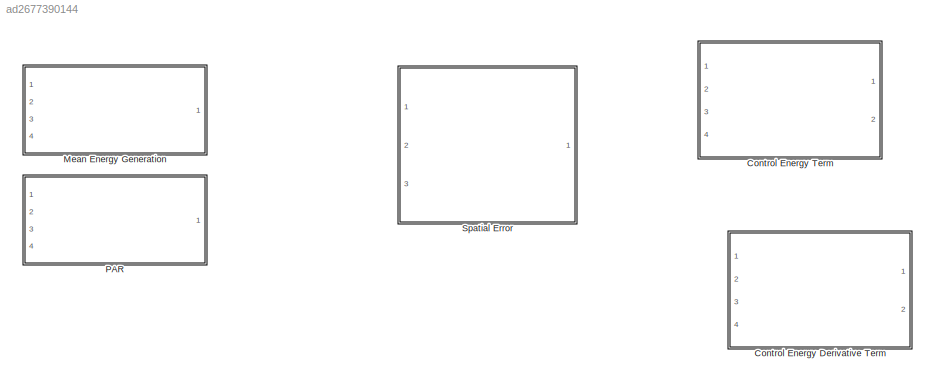
MODEL slx_ad2677390144
KIND library
CONFIG AbsTol = auto
CONFIG EnableMultiTasking = off
CONFIG FixedStep = auto
CONFIG MaxStep = auto
CONFIG MinStep = auto
CONFIG RelTol = 1e-3
CONFIG SampleTimeConstraint = Unconstrained
CONFIG Solver = VariableStepAuto
CONFIG SolverName = VariableStepAuto
CONFIG StartTime = 0.0
CONFIG StopTime = 10.0
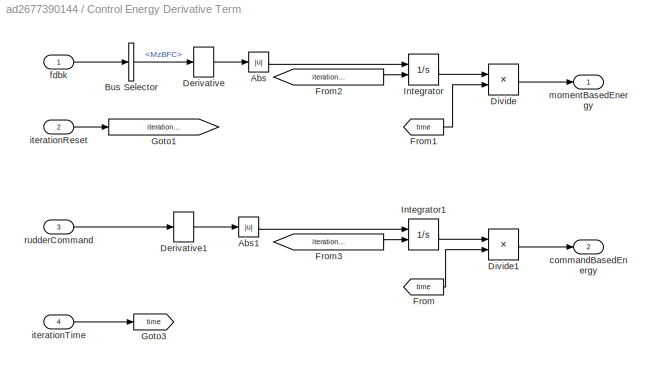
BLOCK [SubSystem] Control Energy Derivative Term
  Ports = [4, 2]
  RequestExecContextInheritance = off
BLOCK [Abs] Control Energy Derivative Term/Abs
  SaturateOnIntegerOverflow = off
BLOCK [Abs] Control Energy Derivative Term/Abs1
  SaturateOnIntegerOverflow = off
BLOCK [BusSelector] Control Energy Derivative Term/Bus Selector
  OutputAsBus = off
  OutputSignals = MzBFC
  Ports = [1, 1]
BLOCK [Derivative] Control Energy Derivative Term/Derivative
BLOCK [Derivative] Control Energy Derivative Term/Derivative1
BLOCK [Product] Control Energy Derivative Term/Divide
  InputSameDT = off
  Inputs = */
  OutDataTypeStr = Inherit: Inherit via internal rule
  Ports = [2, 1]
  RndMeth = Floor
  SaturateOnIntegerOverflow = off
BLOCK [Product] Control Energy Derivative Term/Divide1
  InputSameDT = off
  Inputs = */
  OutDataTypeStr = Inherit: Inherit via internal rule
  Ports = [2, 1]
  RndMeth = Floor
  SaturateOnIntegerOverflow = off
BLOCK [From] Control Energy Derivative Term/From
  GotoTag = time
BLOCK [From] Control Energy Derivative Term/From1
  GotoTag = time
BLOCK [From] Control Energy Derivative Term/From2
  GotoTag = iterationRst
BLOCK [From] Control Energy Derivative Term/From3
  GotoTag = iterationRst
BLOCK [Goto] Control Energy Derivative Term/Goto1
  GotoTag = iterationRst
BLOCK [Goto] Control Energy Derivative Term/Goto3
  GotoTag = time
BLOCK [Integrator] Control Energy Derivative Term/Integrator
  ExternalReset = rising
  Ports = [2, 1]
BLOCK [Integrator] Control Energy Derivative Term/Integrator1
  ExternalReset = rising
  Ports = [2, 1]
BLOCK [Outport] Control Energy Derivative Term/commandBasedEnergy
  IconDisplay = Port number
  Port = 2
BLOCK [Inport] Control Energy Derivative Term/fdbk
  IconDisplay = Port number
BLOCK [Inport] Control Energy Derivative Term/iterationReset
  IconDisplay = Port number
  Port = 2
BLOCK [Inport] Control Energy Derivative Term/iterationTime
  IconDisplay = Port number
  Port = 4
BLOCK [Outport] Control Energy Derivative Term/momentBasedEnergy
  IconDisplay = Port number
BLOCK [Inport] Control Energy Derivative Term/rudderCommand
  IconDisplay = Port number
  Port = 3
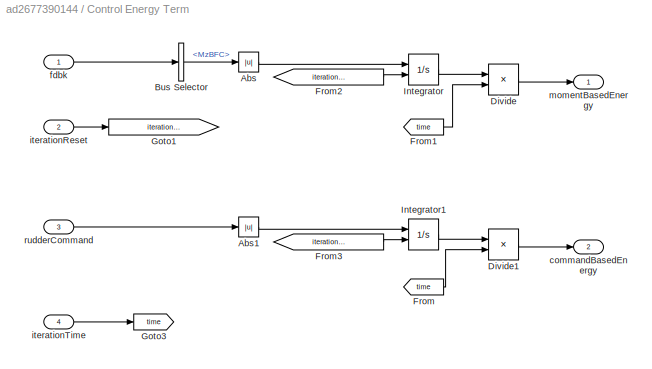
BLOCK [SubSystem] Control Energy Term
  Ports = [4, 2]
  RequestExecContextInheritance = off
BLOCK [Abs] Control Energy Term/Abs
  SaturateOnIntegerOverflow = off
BLOCK [Abs] Control Energy Term/Abs1
  SaturateOnIntegerOverflow = off
BLOCK [BusSelector] Control Energy Term/Bus Selector
  OutputAsBus = off
  OutputSignals = MzBFC
  Ports = [1, 1]
BLOCK [Product] Control Energy Term/Divide
  InputSameDT = off
  Inputs = */
  OutDataTypeStr = Inherit: Inherit via internal rule
  Ports = [2, 1]
  RndMeth = Floor
  SaturateOnIntegerOverflow = off
BLOCK [Product] Control Energy Term/Divide1
  InputSameDT = off
  Inputs = */
  OutDataTypeStr = Inherit: Inherit via internal rule
  Ports = [2, 1]
  RndMeth = Floor
  SaturateOnIntegerOverflow = off
BLOCK [From] Control Energy Term/From
  GotoTag = time
BLOCK [From] Control Energy Term/From1
  GotoTag = time
BLOCK [From] Control Energy Term/From2
  GotoTag = iterationRst
BLOCK [From] Control Energy Term/From3
  GotoTag = iterationRst
BLOCK [Goto] Control Energy Term/Goto1
  GotoTag = iterationRst
BLOCK [Goto] Control Energy Term/Goto3
  GotoTag = time
BLOCK [Integrator] Control Energy Term/Integrator
  ExternalReset = rising
  Ports = [2, 1]
BLOCK [Integrator] Control Energy Term/Integrator1
  ExternalReset = rising
  Ports = [2, 1]
BLOCK [Outport] Control Energy Term/commandBasedEnergy
  IconDisplay = Port number
  Port = 2
BLOCK [Inport] Control Energy Term/fdbk
  IconDisplay = Port number
BLOCK [Inport] Control Energy Term/iterationReset
  IconDisplay = Port number
  Port = 2
BLOCK [Inport] Control Energy Term/iterationTime
  IconDisplay = Port number
  Port = 4
BLOCK [Outport] Control Energy Term/momentBasedEnergy
  IconDisplay = Port number
BLOCK [Inport] Control Energy Term/rudderCommand
  IconDisplay = Port number
  Port = 3
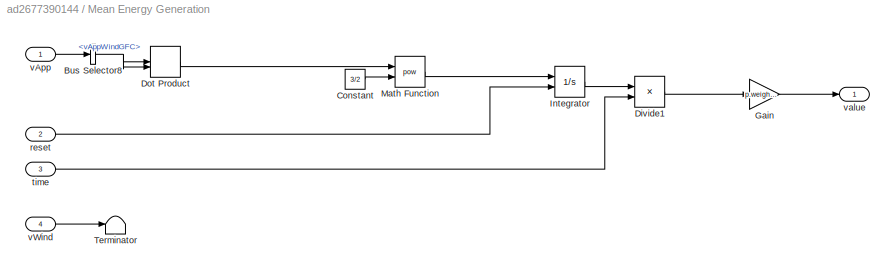
BLOCK [SubSystem] Mean Energy Generation
  Ports = [4, 1]
  RequestExecContextInheritance = off
BLOCK [BusSelector] Mean Energy Generation/Bus Selector8
  OutputAsBus = off
  OutputSignals = vAppWindGFC
  Ports = [1, 1]
BLOCK [Constant] Mean Energy Generation/Constant
  Value = 3/2
BLOCK [Product] Mean Energy Generation/Divide1
  InputSameDT = off
  Inputs = */
  OutDataTypeStr = Inherit: Inherit via internal rule
  Ports = [2, 1]
  RndMeth = Floor
  SaturateOnIntegerOverflow = off
BLOCK [DotProduct] Mean Energy Generation/Dot Product
  OutDataTypeStr = Inherit: Inherit via internal rule
BLOCK [Gain] Mean Energy Generation/Gain
  Gain = p.weightME
  OutDataTypeStr = Inherit: Inherit via internal rule
  ParamDataTypeStr = Inherit: Inherit via internal rule
  SaturateOnIntegerOverflow = off
BLOCK [Integrator] Mean Energy Generation/Integrator
  ExternalReset = rising
  Ports = [2, 1]
BLOCK [Math] Mean Energy Generation/Math Function
  Operator = pow
  Ports = [2, 1]
BLOCK [Terminator] Mean Energy Generation/Terminator
BLOCK [Inport] Mean Energy Generation/reset
  IconDisplay = Port number
  Port = 2
BLOCK [Inport] Mean Energy Generation/time
  IconDisplay = Port number
  Port = 3
BLOCK [Inport] Mean Energy Generation/vApp
  IconDisplay = Port number
BLOCK [Inport] Mean Energy Generation/vWind
  IconDisplay = Port number
  Port = 4
BLOCK [Outport] Mean Energy Generation/value
  IconDisplay = Port number
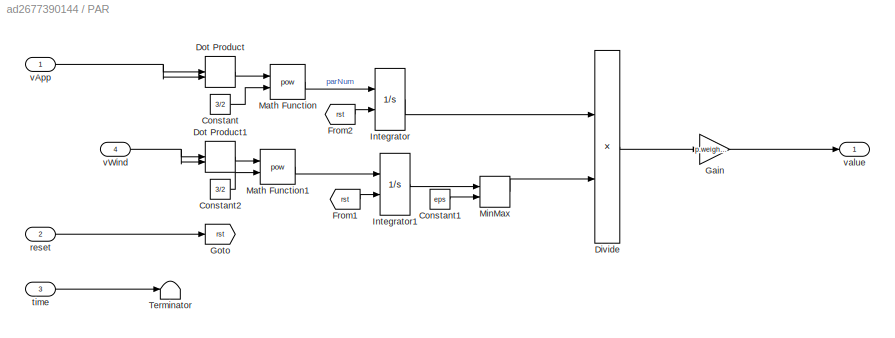
BLOCK [SubSystem] PAR
  Ports = [4, 1]
  RequestExecContextInheritance = off
BLOCK [Constant] PAR/Constant
  Value = 3/2
BLOCK [Constant] PAR/Constant1
  Value = eps
BLOCK [Constant] PAR/Constant2
  Value = 3/2
BLOCK [Product] PAR/Divide
  InputSameDT = off
  Inputs = */
  OutDataTypeStr = Inherit: Inherit via internal rule
  Ports = [2, 1]
  RndMeth = Floor
  SaturateOnIntegerOverflow = off
BLOCK [DotProduct] PAR/Dot Product
  OutDataTypeStr = Inherit: Inherit via internal rule
BLOCK [DotProduct] PAR/Dot Product1
  OutDataTypeStr = Inherit: Inherit via internal rule
BLOCK [From] PAR/From1
  GotoTag = rst
BLOCK [From] PAR/From2
  GotoTag = rst
BLOCK [Gain] PAR/Gain
  Gain = p.weightPAR
  OutDataTypeStr = Inherit: Inherit via internal rule
  ParamDataTypeStr = Inherit: Inherit via internal rule
  SaturateOnIntegerOverflow = off
BLOCK [Goto] PAR/Goto
  GotoTag = rst
BLOCK [Integrator] PAR/Integrator
  ExternalReset = rising
  Ports = [2, 1]
BLOCK [Integrator] PAR/Integrator1
  ExternalReset = rising
  Ports = [2, 1]
BLOCK [Math] PAR/Math Function
  Operator = pow
  Ports = [2, 1]
BLOCK [Math] PAR/Math Function1
  Operator = pow
  Ports = [2, 1]
BLOCK [MinMax] PAR/MinMax
  Function = max
  InputSameDT = off
  Inputs = 2
  Ports = [2, 1]
  SaturateOnIntegerOverflow = off
BLOCK [Terminator] PAR/Terminator
BLOCK [Inport] PAR/reset
  IconDisplay = Port number
  Port = 2
BLOCK [Inport] PAR/time
  IconDisplay = Port number
  Port = 3
BLOCK [Inport] PAR/vApp
  IconDisplay = Port number
BLOCK [Inport] PAR/vWind
  IconDisplay = Port number
  Port = 4
BLOCK [Outport] PAR/value
  IconDisplay = Port number
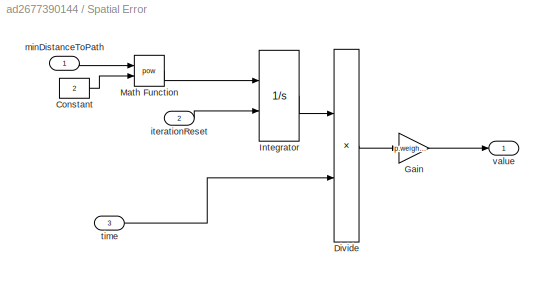
BLOCK [SubSystem] Spatial Error
  Ports = [3, 1]
  RequestExecContextInheritance = off
BLOCK [Constant] Spatial Error/Constant
  Value = 2
BLOCK [Product] Spatial Error/Divide
  InputSameDT = off
  Inputs = */
  OutDataTypeStr = Inherit: Inherit via internal rule
  Ports = [2, 1]
  RndMeth = Floor
  SaturateOnIntegerOverflow = off
BLOCK [Gain] Spatial Error/Gain
  Gain = p.weightSE
  OutDataTypeStr = Inherit: Inherit via internal rule
  ParamDataTypeStr = Inherit: Inherit via internal rule
  SaturateOnIntegerOverflow = off
BLOCK [Integrator] Spatial Error/Integrator
  ExternalReset = rising
  Ports = [2, 1]
BLOCK [Math] Spatial Error/Math Function
  Operator = pow
  Ports = [2, 1]
BLOCK [Inport] Spatial Error/iterationReset
  IconDisplay = Port number
  Port = 2
BLOCK [Inport] Spatial Error/minDistanceToPath
  IconDisplay = Port number
BLOCK [Inport] Spatial Error/time
  IconDisplay = Port number
  Port = 3
BLOCK [Outport] Spatial Error/value
  IconDisplay = Port number
LINE Control Energy Derivative Term/Abs1:1 -> Control Energy Derivative Term/Integrator1:1
LINE Control Energy Derivative Term/Abs:1 -> Control Energy Derivative Term/Integrator:1
LINE Control Energy Derivative Term/Bus Selector:1 -> Control Energy Derivative Term/Derivative:1
LINE Control Energy Derivative Term/Derivative1:1 -> Control Energy Derivative Term/Abs1:1
LINE Control Energy Derivative Term/Derivative:1 -> Control Energy Derivative Term/Abs:1
LINE Control Energy Derivative Term/Divide1:1 -> Control Energy Derivative Term/commandBasedEnergy:1
LINE Control Energy Derivative Term/Divide:1 -> Control Energy Derivative Term/momentBasedEnergy:1
LINE Control Energy Derivative Term/From1:1 -> Control Energy Derivative Term/Divide:2
LINE Control Energy Derivative Term/From2:1 -> Control Energy Derivative Term/Integrator:2
LINE Control Energy Derivative Term/From3:1 -> Control Energy Derivative Term/Integrator1:2
LINE Control Energy Derivative Term/From:1 -> Control Energy Derivative Term/Divide1:2
LINE Control Energy Derivative Term/Integrator1:1 -> Control Energy Derivative Term/Divide1:1
LINE Control Energy Derivative Term/Integrator:1 -> Control Energy Derivative Term/Divide:1
LINE Control Energy Derivative Term/fdbk:1 -> Control Energy Derivative Term/Bus Selector:1
LINE Control Energy Derivative Term/iterationReset:1 -> Control Energy Derivative Term/Goto1:1
LINE Control Energy Derivative Term/iterationTime:1 -> Control Energy Derivative Term/Goto3:1
LINE Control Energy Derivative Term/rudderCommand:1 -> Control Energy Derivative Term/Derivative1:1
LINE Control Energy Term/Abs1:1 -> Control Energy Term/Integrator1:1
LINE Control Energy Term/Abs:1 -> Control Energy Term/Integrator:1
LINE Control Energy Term/Bus Selector:1 -> Control Energy Term/Abs:1
LINE Control Energy Term/Divide1:1 -> Control Energy Term/commandBasedEnergy:1
LINE Control Energy Term/Divide:1 -> Control Energy Term/momentBasedEnergy:1
LINE Control Energy Term/From1:1 -> Control Energy Term/Divide:2
LINE Control Energy Term/From2:1 -> Control Energy Term/Integrator:2
LINE Control Energy Term/From3:1 -> Control Energy Term/Integrator1:2
LINE Control Energy Term/From:1 -> Control Energy Term/Divide1:2
LINE Control Energy Term/Integrator1:1 -> Control Energy Term/Divide1:1
LINE Control Energy Term/Integrator:1 -> Control Energy Term/Divide:1
LINE Control Energy Term/fdbk:1 -> Control Energy Term/Bus Selector:1
LINE Control Energy Term/iterationReset:1 -> Control Energy Term/Goto1:1
LINE Control Energy Term/iterationTime:1 -> Control Energy Term/Goto3:1
LINE Control Energy Term/rudderCommand:1 -> Control Energy Term/Abs1:1
NET Mean Energy Generation/Bus Selector8:1 -> Mean Energy Generation/Dot Product:1, Mean Energy Generation/Dot Product:2
LINE Mean Energy Generation/Constant:1 -> Mean Energy Generation/Math Function:2
LINE Mean Energy Generation/Divide1:1 -> Mean Energy Generation/Gain:1
LINE Mean Energy Generation/Dot Product:1 -> Mean Energy Generation/Math Function:1
LINE Mean Energy Generation/Gain:1 -> Mean Energy Generation/value:1
LINE Mean Energy Generation/Integrator:1 -> Mean Energy Generation/Divide1:1
LINE Mean Energy Generation/Math Function:1 -> Mean Energy Generation/Integrator:1
LINE Mean Energy Generation/reset:1 -> Mean Energy Generation/Integrator:2
LINE Mean Energy Generation/time:1 -> Mean Energy Generation/Divide1:2
LINE Mean Energy Generation/vApp:1 -> Mean Energy Generation/Bus Selector8:1
LINE Mean Energy Generation/vWind:1 -> Mean Energy Generation/Terminator:1
LINE PAR/Constant1:1 -> PAR/MinMax:2
LINE PAR/Constant2:1 -> PAR/Math Function1:2
LINE PAR/Constant:1 -> PAR/Math Function:2
LINE PAR/Divide:1 -> PAR/Gain:1
LINE PAR/Dot Product1:1 -> PAR/Math Function1:1
LINE PAR/Dot Product:1 -> PAR/Math Function:1
LINE PAR/From1:1 -> PAR/Integrator1:2
LINE PAR/From2:1 -> PAR/Integrator:2
LINE PAR/Gain:1 -> PAR/value:1
LINE PAR/Integrator1:1 -> PAR/MinMax:1
LINE PAR/Integrator:1 -> PAR/Divide:1
LINE PAR/Math Function1:1 -> PAR/Integrator1:1
LINE PAR/Math Function:1 -> PAR/Integrator:1
LINE PAR/MinMax:1 -> PAR/Divide:2
LINE PAR/reset:1 -> PAR/Goto:1
LINE PAR/time:1 -> PAR/Terminator:1
NET PAR/vApp:1 -> PAR/Dot Product:1, PAR/Dot Product:2
NET PAR/vWind:1 -> PAR/Dot Product1:1, PAR/Dot Product1:2
LINE Spatial Error/Constant:1 -> Spatial Error/Math Function:2
LINE Spatial Error/Divide:1 -> Spatial Error/Gain:1
LINE Spatial Error/Gain:1 -> Spatial Error/value:1
LINE Spatial Error/Integrator:1 -> Spatial Error/Divide:1
LINE Spatial Error/Math Function:1 -> Spatial Error/Integrator:1
LINE Spatial Error/iterationReset:1 -> Spatial Error/Integrator:2
LINE Spatial Error/minDistanceToPath:1 -> Spatial Error/Math Function:1
LINE Spatial Error/time:1 -> Spatial Error/Divide:2
note: NET lines group one-source signal fan-out (src -> all destinations, sorted); 1:1 wires keep LINE
